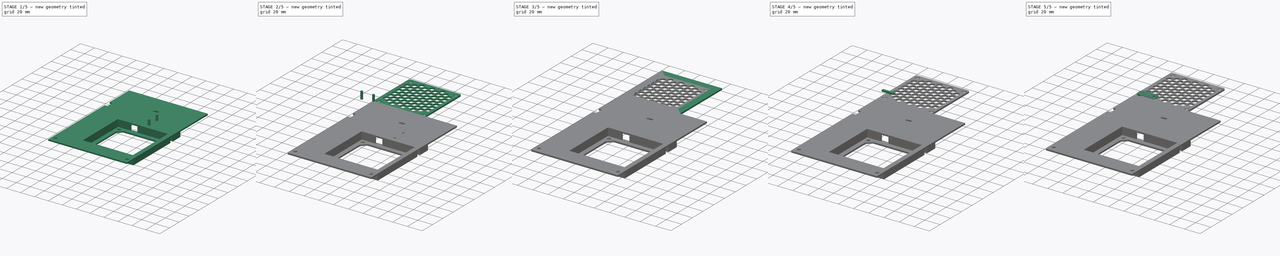
[diagram: build sequence overview — one tinted view per stage of 5, left to right]
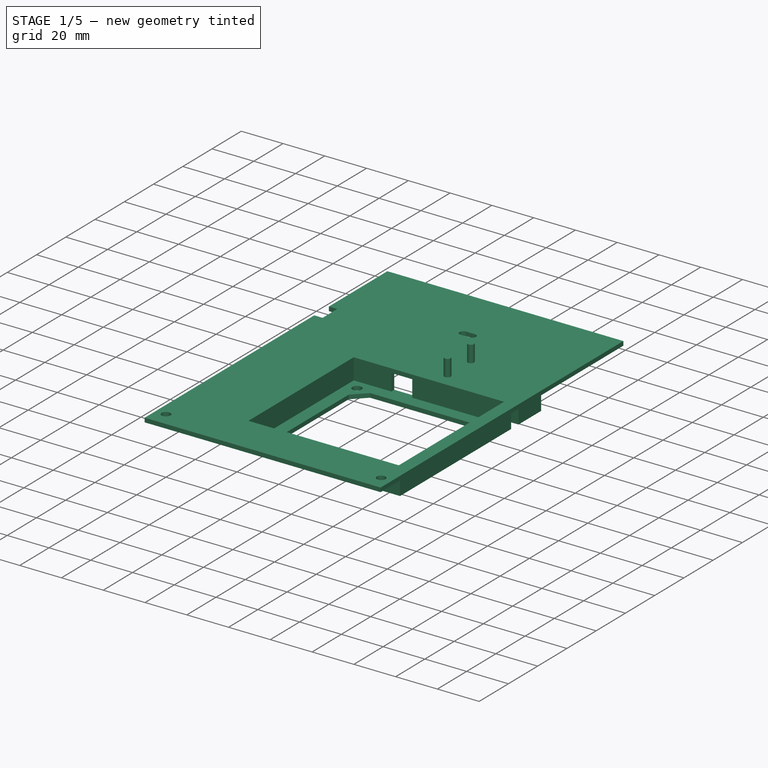
[diagram: stage 1 of 5 — iso view after this stage's code; geometry added in this stage tinted green]
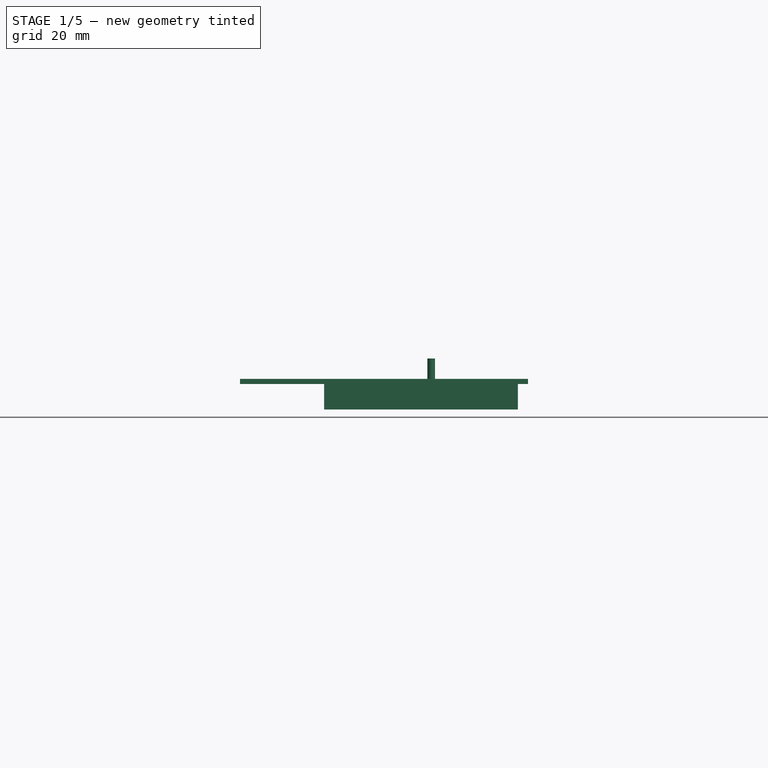
[diagram: stage 1 of 5 — front view after this stage's code; geometry added in this stage tinted green]
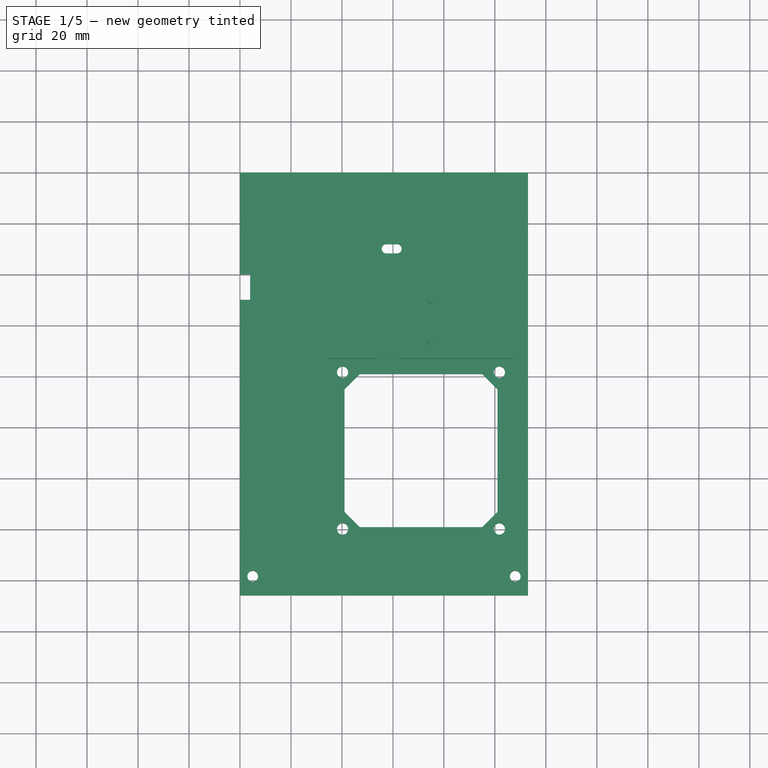
[diagram: stage 1 of 5 — top view after this stage's code; geometry added in this stage tinted green]
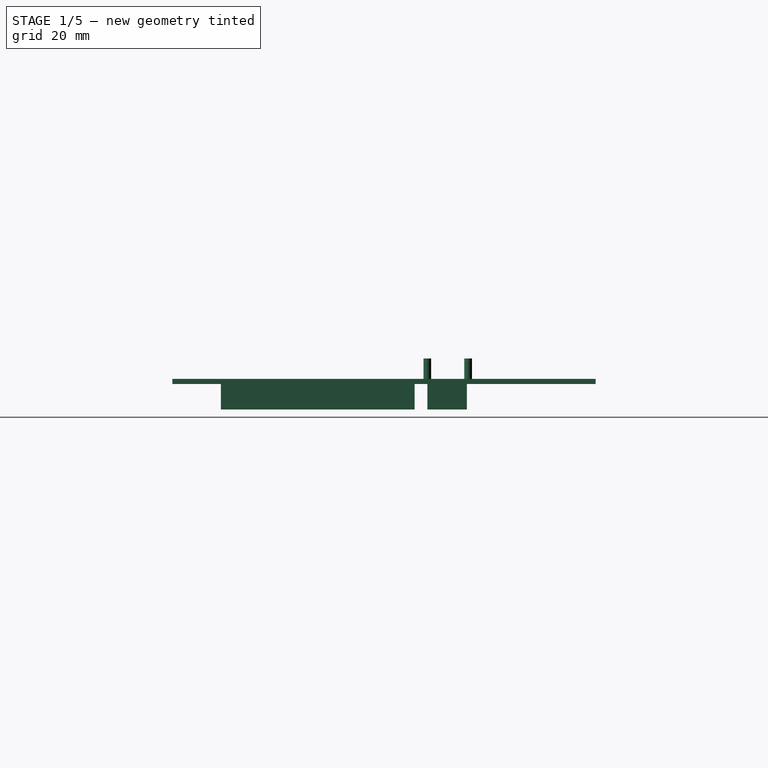
[diagram: stage 1 of 5 — right view after this stage's code; geometry added in this stage tinted green]
FCSTD DOCUMENT  (FreeCAD 0.18R14555 (Git shallow))
Label: toolbox-lit
License: All rights reserved
LicenseURL: http://en.wikipedia.org/wiki/All_rights_reserved
objects: Part::Feature×32, Part::Cylinder×27, Part::Box×16, Part::MultiFuse×16, Part::Cut×16, Part::Chamfer×4, Sketcher::SketchObject×1, PartDesign::Pad×1, PartDesign::Body×1, Part::MultiCommon×1, Part::Fillet×1
note: 117 computed .brp shape members not serialized (recipe doc carries the construction recipe); baked Part::Feature solids carry a one-line shape summary decoded from their .brp

FEATURE [Part::Feature] Fusion001002018001  label="Fusion001002019"
  shape: bbox 113 x 166 x 12 mm, 65 faces (baked)
FEATURE [Part::Cylinder] Cylinder017
  Angle = 360
  AttacherType = Attacher::AttachEngine3D
  Height = 2
  Placement = pos=(41,-79,-10) rot=(0,0,1;0rad)
  Radius = 2.2
FEATURE [Part::Cylinder] Cylinder018
  Angle = 360
  AttacherType = Attacher::AttachEngine3D
  Height = 2
  Placement = pos=(101,-79,-10) rot=(0,0,1;0rad)
  Radius = 2.2
FEATURE [Part::Cylinder] Cylinder019
  Angle = 360
  AttacherType = Attacher::AttachEngine3D
  Height = 2
  Placement = pos=(101,-139,-10) rot=(0,0,1;0rad)
  Radius = 2.2
FEATURE [Part::Cylinder] Cylinder020
  Angle = 360
  AttacherType = Attacher::AttachEngine3D
  Height = 2
  Placement = pos=(41,-139,-10) rot=(0,0,1;0rad)
  Radius = 2.2
FEATURE [Part::Cylinder] Cylinder021
  Angle = 360
  AttacherType = Attacher::AttachEngine3D
  Height = 2
  Placement = pos=(40.25,-139.75,-10) rot=(0,0,1;0rad)
  Radius = 2.2
FEATURE [Part::Cylinder] Cylinder022
  Angle = 360
  AttacherType = Attacher::AttachEngine3D
  Height = 2
  Placement = pos=(101.75,-139.75,-10) rot=(0,0,1;0rad)
  Radius = 2.2
FEATURE [Part::Cylinder] Cylinder023
  Angle = 360
  AttacherType = Attacher::AttachEngine3D
  Height = 2
  Placement = pos=(101.75,-78.25,-10) rot=(0,0,1;0rad)
  Radius = 2.2
FEATURE [Part::Cylinder] Cylinder024
  Angle = 360
  AttacherType = Attacher::AttachEngine3D
  Height = 2
  Placement = pos=(40.25,-78.25,-10) rot=(0,0,1;0rad)
  Radius = 2.2
FEATURE [Part::MultiFuse] Fusion001002018002
  Shapes = -> [Cylinder020,Cylinder019,Cylinder018,Cylinder017,Fusion001002018001]
FEATURE [Part::MultiFuse] Fusion001002018003
  Shapes = -> [Cylinder021,Cylinder024,Cylinder022,Cylinder023]
FEATURE [Part::Cut] Cut016
  Base = -> Fusion001002018002
  Tool = -> Fusion001002018003
FEATURE [Part::Cylinder] Cylinder029
  Angle = 360
  AttacherType = Attacher::AttachEngine3D
  Height = 10
  Placement = pos=(38,-66,0) rot=(0,0,1;0rad)
  Radius = 1.5
FEATURE [Part::Cylinder] Cylinder030
  Angle = 360
  AttacherType = Attacher::AttachEngine3D
  Height = 10
  Placement = pos=(38,-50,0) rot=(0,0,1;0rad)
  Radius = 1.5
FEATURE [Part::MultiFuse] Fusion001002018005009
  Placement = pos=(37,0,0) rot=(0,0,1;0rad)
  Shapes = -> [Cylinder030,Cylinder029]
FEATURE [Part::Box] Box018  label="Cube018"
  AttacherType = Attacher::AttachEngine3D
  Height = 2
  Length = 10
  Placement = pos=(32,-68,0) rot=(0,0,1;0rad)
  Width = 20
FEATURE [Part::Feature] Fusion001002018005010001  label="Fusion001002018005011"
  shape: bbox 113 x 166 x 12 mm, 65 faces (baked)
FEATURE [Part::Chamfer] Chamfer001004
  Base = -> Fusion001002018005010001
  Edges = 12 edges r=1: [Edge190,Edge191,Edge192,Edge194,Edge195,Edge196,Edge198,Edge199,Edge200,Edge202,Edge203,Edge204]
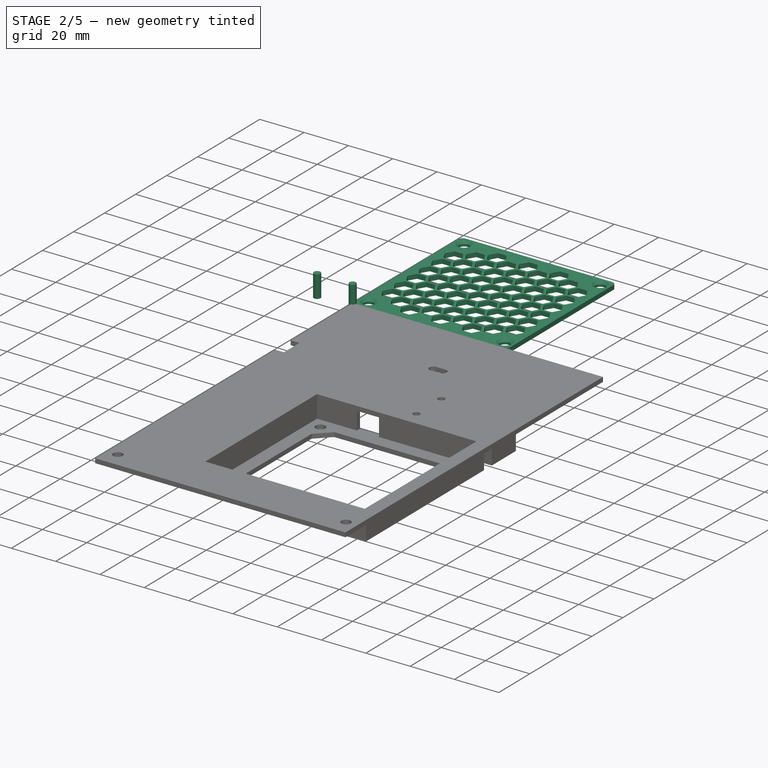
[diagram: stage 2 of 5 — iso view after this stage's code; geometry added in this stage tinted green]
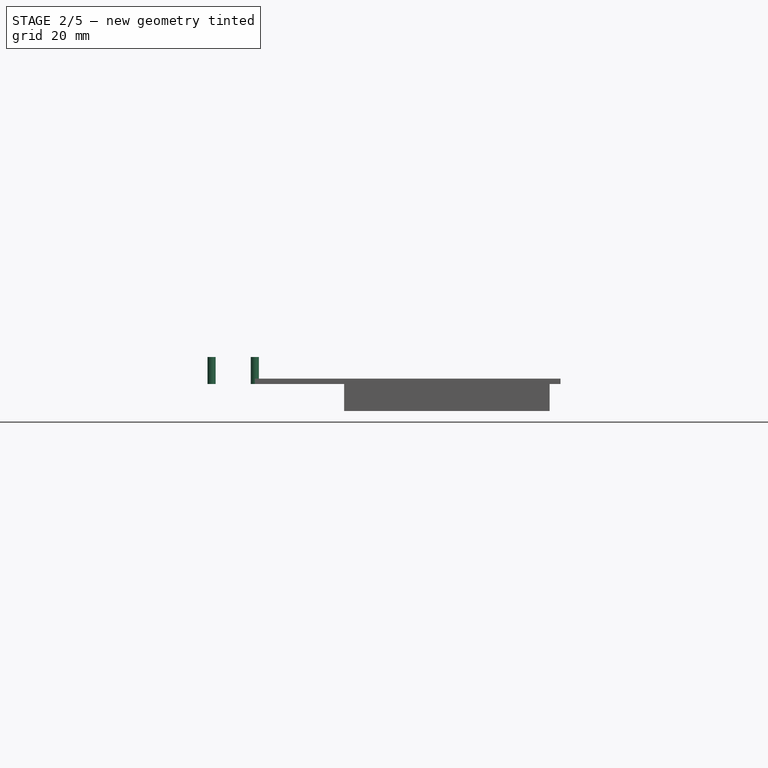
[diagram: stage 2 of 5 — front view after this stage's code; geometry added in this stage tinted green]
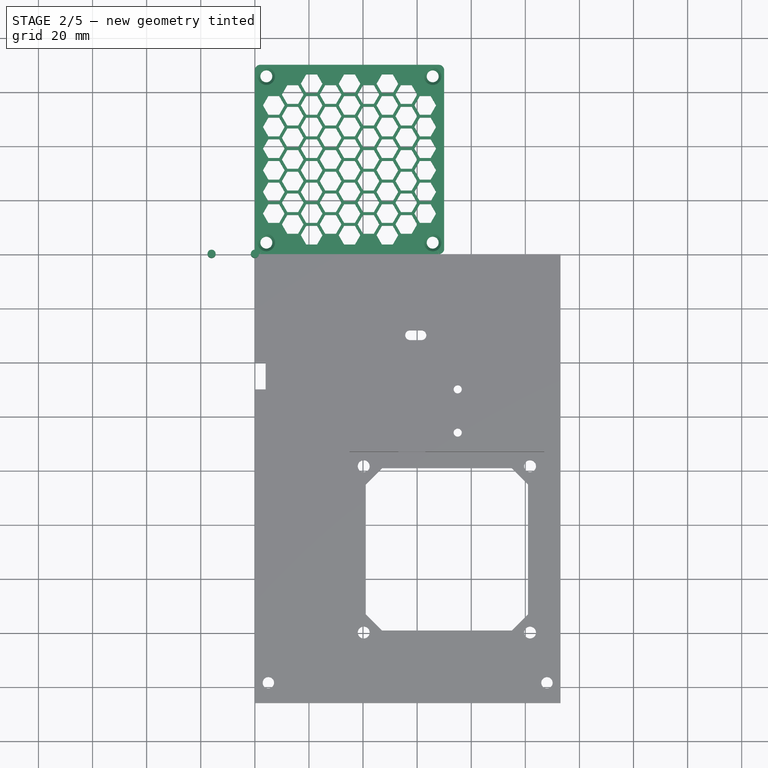
[diagram: stage 2 of 5 — top view after this stage's code; geometry added in this stage tinted green]
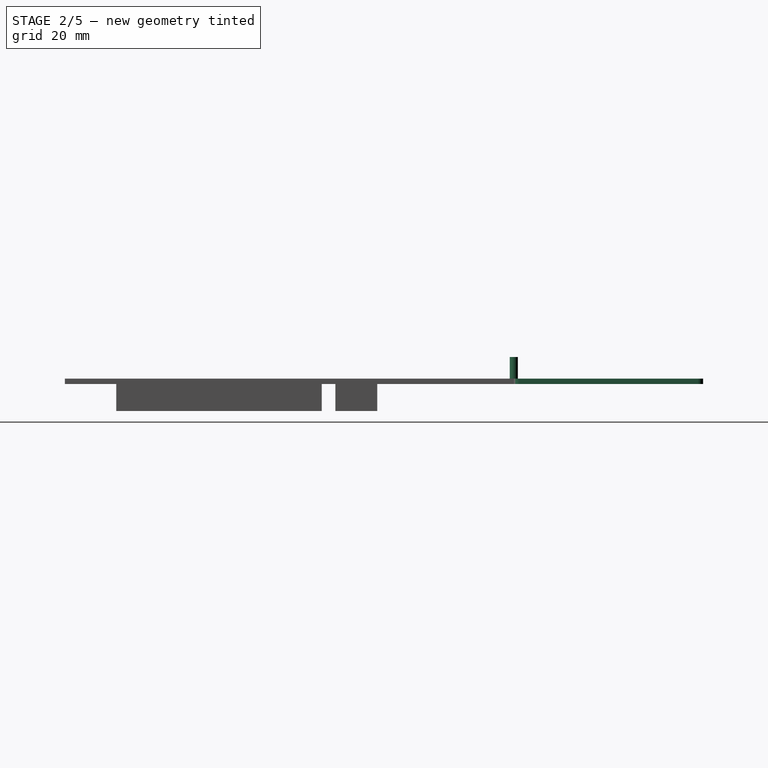
[diagram: stage 2 of 5 — right view after this stage's code; geometry added in this stage tinted green]
FEATURE [Part::Cylinder] Cylinder015
  Angle = 360
  AttacherType = Attacher::AttachEngine3D
  Height = 10
  Radius = 1.5
FEATURE [Part::Cylinder] Cylinder016
  Angle = 360
  AttacherType = Attacher::AttachEngine3D
  Height = 10
  Placement = pos=(-16,0,0) rot=(0,0,1;0rad)
  Radius = 1.5
FEATURE [Part::Box] Box  label="Cube"
  AttacherType = Attacher::AttachEngine3D
  Height = 2
  Length = 70
  Width = 70
FEATURE [Part::Cylinder] Cylinder025
  Angle = 360
  AttacherType = Attacher::AttachEngine3D
  Height = 2
  Placement = pos=(4.25,4.25,0) rot=(0,0,1;0rad)
  Radius = 2.2
FEATURE [Part::Cylinder] Cylinder026
  Angle = 360
  AttacherType = Attacher::AttachEngine3D
  Height = 2
  Placement = pos=(4.25,65.75,0) rot=(0,0,1;0rad)
  Radius = 2.2
FEATURE [Part::Cylinder] Cylinder027
  Angle = 360
  AttacherType = Attacher::AttachEngine3D
  Height = 2
  Placement = pos=(65.75,65.75,0) rot=(0,0,1;0rad)
  Radius = 2.2
FEATURE [Part::Cylinder] Cylinder028
  Angle = 360
  AttacherType = Attacher::AttachEngine3D
  Height = 2
  Placement = pos=(65.75,4.25,0) rot=(0,0,1;0rad)
  Radius = 2.2
FEATURE [Part::MultiFuse] Fusion001002018004
  Shapes = -> [Cylinder028,Cylinder027,Cylinder026,Cylinder025]
FEATURE [Part::Fillet] Fillet
  Base = -> Box
  Edges = 4 edges r=2: [Edge1,Edge3,Edge5,Edge7]
FEATURE [Part::Cut] Cut016002
  Base = -> Fillet
  Tool = -> Fusion001002018004
FEATURE [Part::Feature] Body022002  label="Body027"
  Placement = pos=(12,61,0) rot=(0,0,1;0rad)
  shape: bbox 8 x 6.928 x 2 mm, 8 faces (baked)
FEATURE [Part::Feature] Body022003  label="Body028"
  Placement = pos=(19,57,0) rot=(0,0,1;0rad)
  shape: bbox 8 x 6.928 x 2 mm, 8 faces (baked)
FEATURE [Part::Feature] Body022004  label="Body029"
  Placement = pos=(26,61,0) rot=(0,0,1;0rad)
  shape: bbox 8 x 6.928 x 2 mm, 8 faces (baked)
FEATURE [Part::Feature] Body022005  label="Body030"
  Placement = pos=(33,57,0) rot=(0,0,1;0rad)
  shape: bbox 8 x 6.928 x 2 mm, 8 faces (baked)
FEATURE [Part::Feature] Body022006  label="Body031"
  Placement = pos=(40,61,0) rot=(0,0,1;0rad)
  shape: bbox 8 x 6.928 x 2 mm, 8 faces (baked)
FEATURE [Part::Feature] Body022007  label="Body032"
  Placement = pos=(47,57,0) rot=(0,0,1;0rad)
  shape: bbox 8 x 6.928 x 2 mm, 8 faces (baked)
FEATURE [Part::Feature] Body022008  label="Body033"
  Placement = pos=(54,61,0) rot=(0,0,1;0rad)
  shape: bbox 8 x 6.928 x 2 mm, 8 faces (baked)
FEATURE [Part::Feature] Body022009  label="Body034"
  Placement = pos=(61,57,0) rot=(0,0,1;0rad)
  shape: bbox 8 x 6.928 x 2 mm, 8 faces (baked)
FEATURE [Part::Feature] Body022010  label="Body035"
  Placement = pos=(5,57,0) rot=(0,0,1;0rad)
  shape: bbox 8 x 6.928 x 2 mm, 8 faces (baked)
FEATURE [Part::Feature] Body022013  label="Body038"
  Placement = pos=(14,13,0) rot=(0,0,1;0rad)
  shape: bbox 8 x 6.928 x 2 mm, 8 faces (baked)
FEATURE [Part::MultiFuse] Fusion001002018005
  Placement = pos=(2,0,0) rot=(0,0,1;0rad)
  Shapes = -> [Body022010,Body022009,Body022002,Body022008,Body022005,Body022004,Body022003,Body022006,Body022007]
FEATURE [Part::Feature] Fusion001002018005001  label="Fusion001002018006"
  Placement = pos=(2,0,0) rot=(0,0,1;0rad)
  shape: bbox 64 x 10.93 x 2 mm, 72 faces, 9 solids (baked)
FEATURE [Part::Feature] Fusion001002018005002  label="Fusion001002018007"
  Placement = pos=(2,-8,0) rot=(0,0,1;0rad)
  shape: bbox 64 x 10.93 x 2 mm, 72 faces, 9 solids (baked)
FEATURE [Part::Feature] Fusion001002018005003  label="Fusion001002018008"
  Placement = pos=(2,-16,0) rot=(0,0,1;0rad)
  shape: bbox 64 x 10.93 x 2 mm, 72 faces, 9 solids (baked)
FEATURE [Part::Feature] Fusion001002018005004  label="Fusion001002018009"
  Placement = pos=(2,-24,0) rot=(0,0,1;0rad)
  shape: bbox 64 x 10.93 x 2 mm, 72 faces, 9 solids (baked)
FEATURE [Part::Feature] Fusion001002018005005  label="Fusion001002018010"
  Placement = pos=(2,-32,0) rot=(0,0,1;0rad)
  shape: bbox 64 x 10.93 x 2 mm, 72 faces, 9 solids (baked)
FEATURE [Part::Feature] Fusion001002018005006  label="Fusion001002018011"
  Placement = pos=(2,-40,0) rot=(0,0,1;0rad)
  shape: bbox 64 x 10.93 x 2 mm, 72 faces, 9 solids (baked)
FEATURE [Part::Feature] Body022014  label="Body039"
  Placement = pos=(28,13,0) rot=(0,0,1;0rad)
  shape: bbox 8 x 6.928 x 2 mm, 8 faces (baked)
FEATURE [Part::Feature] Body022015  label="Body040"
  Placement = pos=(42,13,0) rot=(0,0,1;0rad)
  shape: bbox 8 x 6.928 x 2 mm, 8 faces (baked)
FEATURE [Part::Feature] Body022016  label="Body041"
  Placement = pos=(56,13,0) rot=(0,0,1;0rad)
  shape: bbox 8 x 6.928 x 2 mm, 8 faces (baked)
FEATURE [Part::MultiFuse] Fusion001002018005007
  Placement = pos=(0,-3,0) rot=(0,0,1;0rad)
  Shapes = -> [Body022013,Fusion001002018005001,Fusion001002018005004,Fusion001002018005002,Fusion001002018005003,Fusion001002018005,Body022014,Fusion001002018005005,Body022015,Body022016,Fusion001002018005006]
FEATURE [Part::Feature] Body022017  label="Body042"
  Placement = pos=(21,6,0) rot=(0,0,1;0rad)
  shape: bbox 8 x 6.928 x 2 mm, 8 faces (baked)
FEATURE [Part::Feature] Body022018  label="Body043"
  Placement = pos=(35,6,0) rot=(0,0,1;0rad)
  shape: bbox 8 x 6.928 x 2 mm, 8 faces (baked)
FEATURE [Part::Feature] Body022019  label="Body044"
  Placement = pos=(49,6,0) rot=(0,0,1;0rad)
  shape: bbox 8 x 6.928 x 2 mm, 8 faces (baked)
FEATURE [Part::Feature] Body022020  label="Body045"
  Placement = pos=(49,62,0) rot=(0,0,1;0rad)
  shape: bbox 8 x 6.928 x 2 mm, 8 faces (baked)
FEATURE [Part::Feature] Body022021  label="Body046"
  Placement = pos=(35,62,0) rot=(0,0,1;0rad)
  shape: bbox 8 x 6.928 x 2 mm, 8 faces (baked)
FEATURE [Part::Feature] Body022022  label="Body047"
  Placement = pos=(21,62,0) rot=(0,0,1;0rad)
  shape: bbox 8 x 6.928 x 2 mm, 8 faces (baked)
FEATURE [Part::MultiFuse] Fusion001002018005008
  Placement = pos=(0,1,0) rot=(0,0,1;0rad)
  Shapes = -> [Body022022,Body022020,Body022019,Body022021,Body022017,Body022018,Fusion001002018005007]
FEATURE [Part::Cut] Cut016003
  Base = -> Cut016002
  Tool = -> Fusion001002018005008
FEATURE [Part::Chamfer] Chamfer001003  label="mesh"
  Base = -> Cut016003
  Edges = 4 edges r=1: [Edge168,Edge253,Edge398,Edge399]
FEATURE [Part::Cut] Cut016004
  Base = -> Cut016
  Tool = -> Fusion001002018005009
FEATURE [Part::MultiFuse] Fusion001002018005010
  Shapes = -> [Box018,Cut016004]
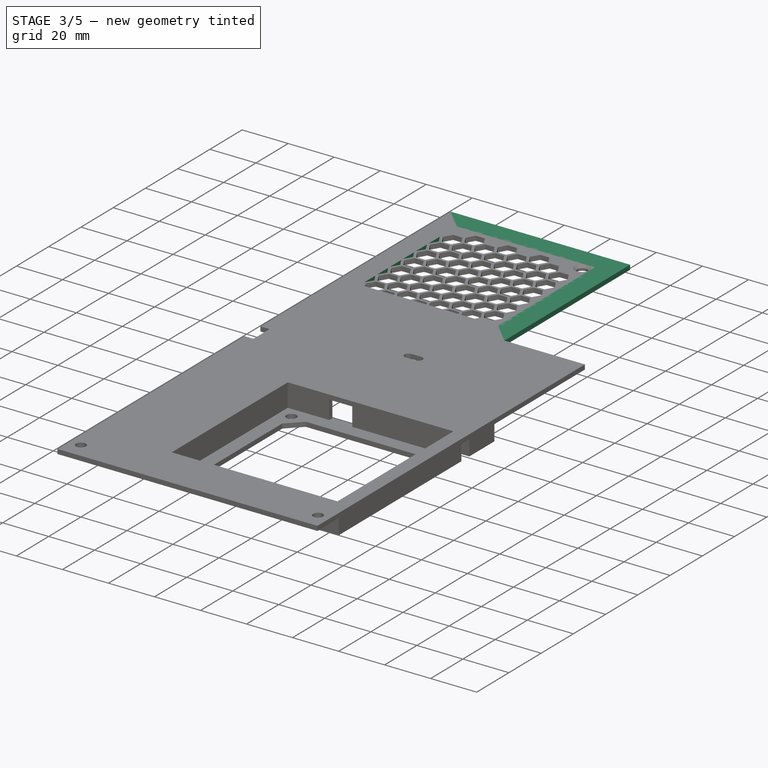
[diagram: stage 3 of 5 — iso view after this stage's code; geometry added in this stage tinted green]
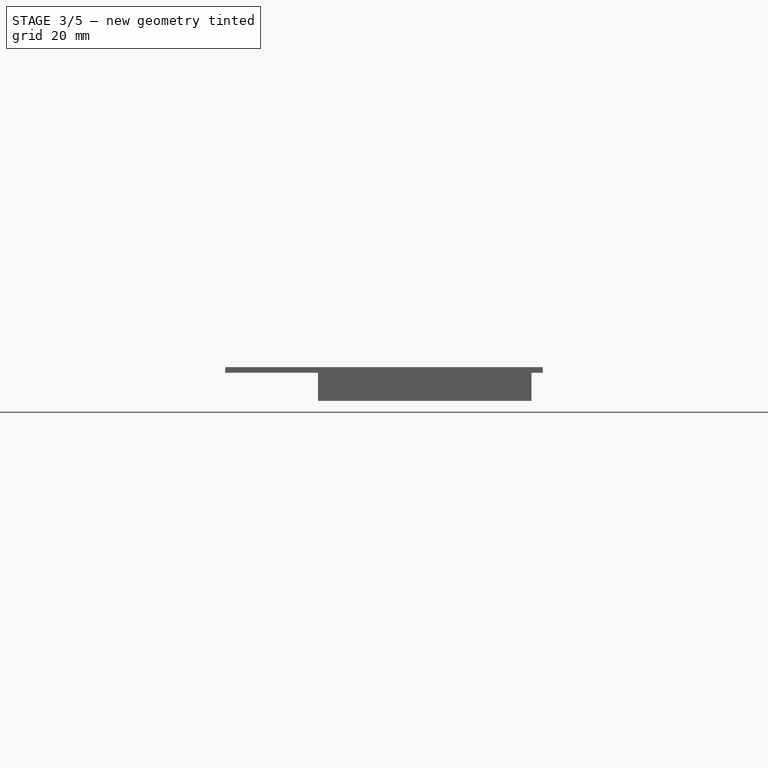
[diagram: stage 3 of 5 — front view after this stage's code; geometry added in this stage tinted green]
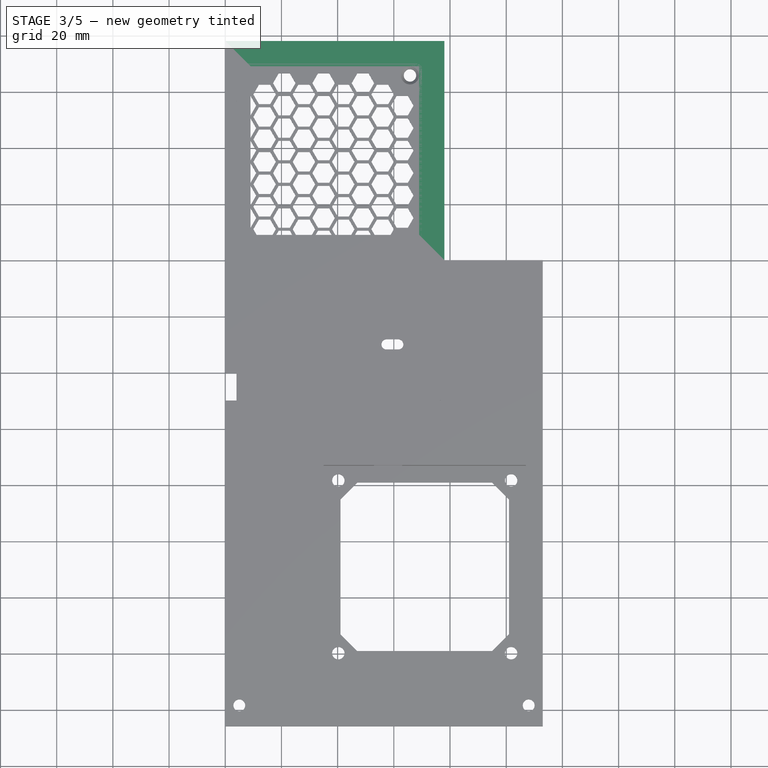
[diagram: stage 3 of 5 — top view after this stage's code; geometry added in this stage tinted green]
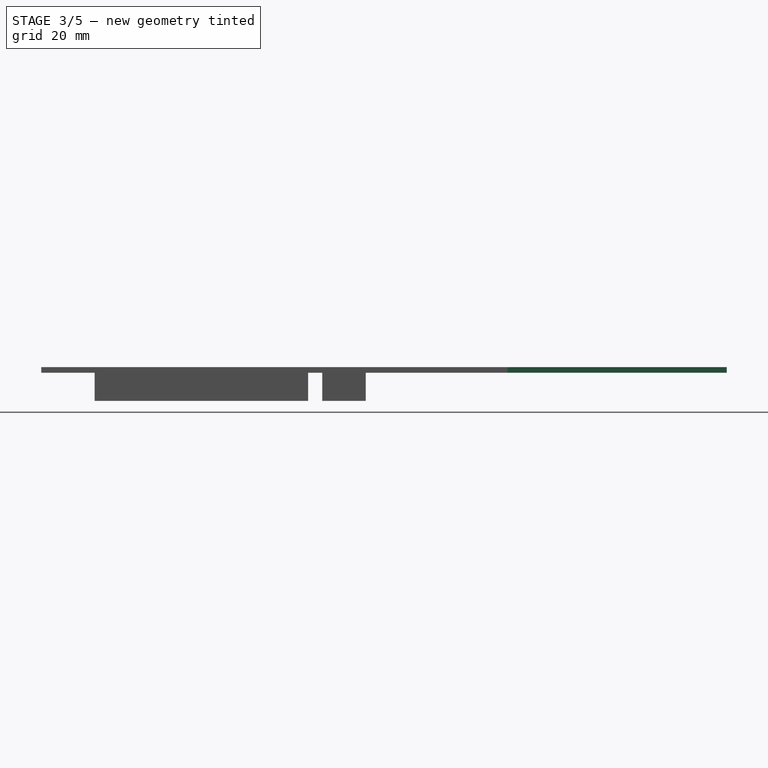
[diagram: stage 3 of 5 — right view after this stage's code; geometry added in this stage tinted green]
FEATURE [Sketcher::SketchObject] Sketch001
  MapMode = 5
  Support = -> [XY_Plane001]
  sketch-geometry (8):
    g0: LineSegment StartX=0 StartY=0 StartZ=0 EndX=113 EndY=0 EndZ=0
    g1: LineSegment StartX=113 StartY=0 StartZ=0 EndX=113 EndY=-166 EndZ=0
    g2: LineSegment StartX=113 StartY=-166 StartZ=0 EndX=0 EndY=-166 EndZ=0
    g3: LineSegment StartX=0 StartY=-166 StartZ=0 EndX=0 EndY=-50 EndZ=0
    g4: LineSegment StartX=0 StartY=-50 StartZ=0 EndX=4 EndY=-50 EndZ=0
    g5: LineSegment StartX=4 StartY=-50 StartZ=0 EndX=4 EndY=-40 EndZ=0
    g6: LineSegment StartX=4 StartY=-40 StartZ=0 EndX=0 EndY=-40 EndZ=0
    g7: LineSegment StartX=0 StartY=-40 StartZ=0 EndX=0 EndY=0 EndZ=0
  constraints (18):
    c: Coincident(g-1,g0)
    c: PointOnObject(g0,g-1)
    c: Coincident(g0,g1)
    c: Vertical(g1)
    c: Coincident(g1,g2)
    c: Horizontal(g2)
    c: Coincident(g2,g3)
    c: PointOnObject(g3,g-2)
    c: Vertical(g3)
    c: Coincident(g3,g4)
    c: Horizontal(g4)
    c: Coincident(g4,g5)
    c: Vertical(g5)
    c: Coincident(g5,g6)
    c: PointOnObject(g6,g-2)
    c: Horizontal(g6)
    c: Coincident(g6,g7)
    c: Coincident(g7,g0)
FEATURE [PartDesign::Pad] Pad001
  Length = 2
  Length2 = 100
  Profile = -> Sketch001
  Type = 0
FEATURE [PartDesign::Body] Body019
  Group = -> [Sketch001,Pad001]
  Origin = -> Origin001
  Tip = -> Pad001
FEATURE [Part::Cylinder] Cylinder005
  Angle = 360
  AttacherType = Attacher::AttachEngine3D
  Height = 10
  Placement = pos=(5,-158.5,0) rot=(0,0,1;0rad)
  Radius = 2.1
FEATURE [Part::Cylinder] Cylinder006
  Angle = 360
  AttacherType = Attacher::AttachEngine3D
  Height = 10
  Placement = pos=(108,-158.5,0) rot=(0,0,1;0rad)
  Radius = 2.1
FEATURE [Part::Cylinder] Cylinder007
  Angle = 360
  AttacherType = Attacher::AttachEngine3D
  Height = 10
  Placement = pos=(59.5,-30,0) rot=(0,0,1;0rad)
  Radius = 1.8
FEATURE [Part::Cylinder] Cylinder008
  Angle = 360
  AttacherType = Attacher::AttachEngine3D
  Height = 10
  Placement = pos=(57.4,-30,0) rot=(0,0,1;0rad)
  Radius = 1.8
FEATURE [Part::Cylinder] Cylinder009
  Angle = 360
  AttacherType = Attacher::AttachEngine3D
  Height = 10
  Placement = pos=(61.6,-30,0) rot=(0,0,1;0rad)
  Radius = 1.8
FEATURE [Part::Box] Box002  label="Cube002"
  AttacherType = Attacher::AttachEngine3D
  Height = 10
  Length = 4.2
  Placement = pos=(57.4,-31.8,0) rot=(0,0,1;0rad)
  Width = 3.6
FEATURE [Part::MultiFuse] Fusion001002008
  Shapes = -> [Box002,Cylinder008,Cylinder009,Cylinder007,Cylinder006,Cylinder005]
FEATURE [Part::Cut] Cut003  label="lit"
  Base = -> Body019
  Tool = -> Fusion001002008
FEATURE [Part::Box] Box003  label="Cube003"
  AttacherType = Attacher::AttachEngine3D
  Height = 2
  Length = 78
  Width = 78
FEATURE [Part::Box] Box009  label="Cube009"
  AttacherType = Attacher::AttachEngine3D
  Height = 10
  Length = 72
  Placement = pos=(35,-145,-3) rot=(0,0,1;0rad)
  Width = 72
FEATURE [Part::Cut] Cut006
  Base = -> Cut003
  Tool = -> Box009
FEATURE [Part::MultiFuse] Fusion001002014
  Placement = pos=(38,-66,0) rot=(0,0,-1;1.5708rad)
  Shapes = -> [Cylinder016,Cylinder015]
FEATURE [Part::Feature] Chamfer001001  label="cable-holder"
  Placement = pos=(-27,-46,0) rot=(0,0,-1;1.5708rad)
  shape: bbox 10 x 24 x 3 mm, 16 faces (baked)
FEATURE [Part::Box] Box017  label="Cube017"
  AttacherType = Attacher::AttachEngine3D
  Height = 10
  Length = 60
  Placement = pos=(9,9,0) rot=(0,0,1;0rad)
  Width = 60
FEATURE [Part::Cut] Cut
  Base = -> Box003
  Tool = -> Box017
FEATURE [Part::Cut] Cut015
  Base = -> Cut006
  Tool = -> Fusion001002014
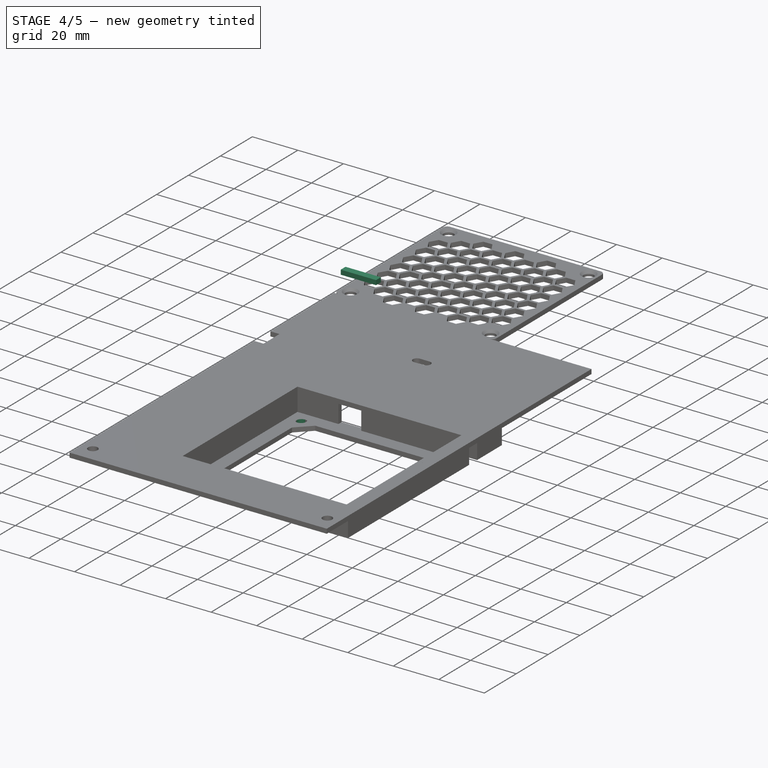
[diagram: stage 4 of 5 — iso view after this stage's code; geometry added in this stage tinted green]
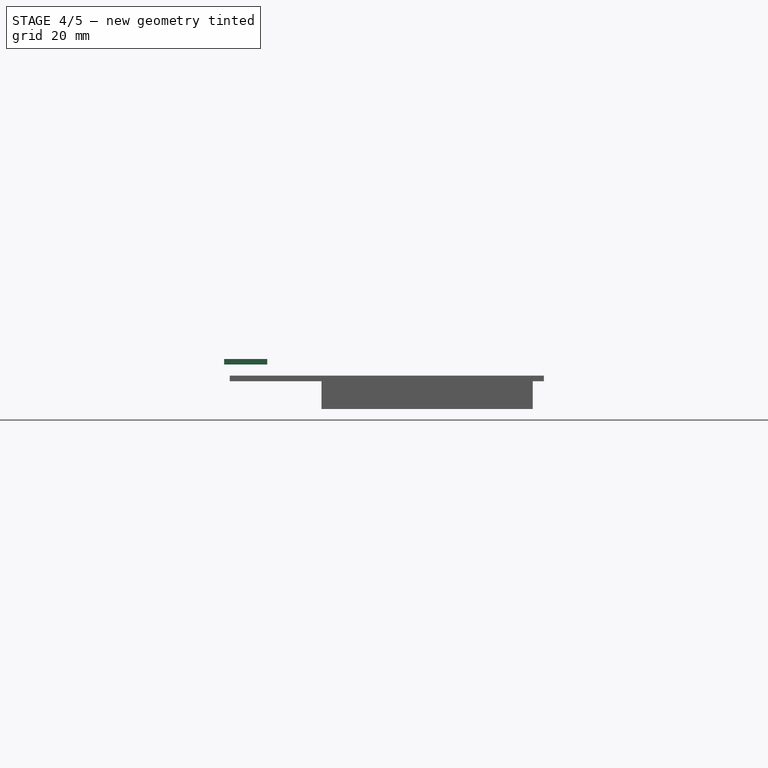
[diagram: stage 4 of 5 — front view after this stage's code; geometry added in this stage tinted green]
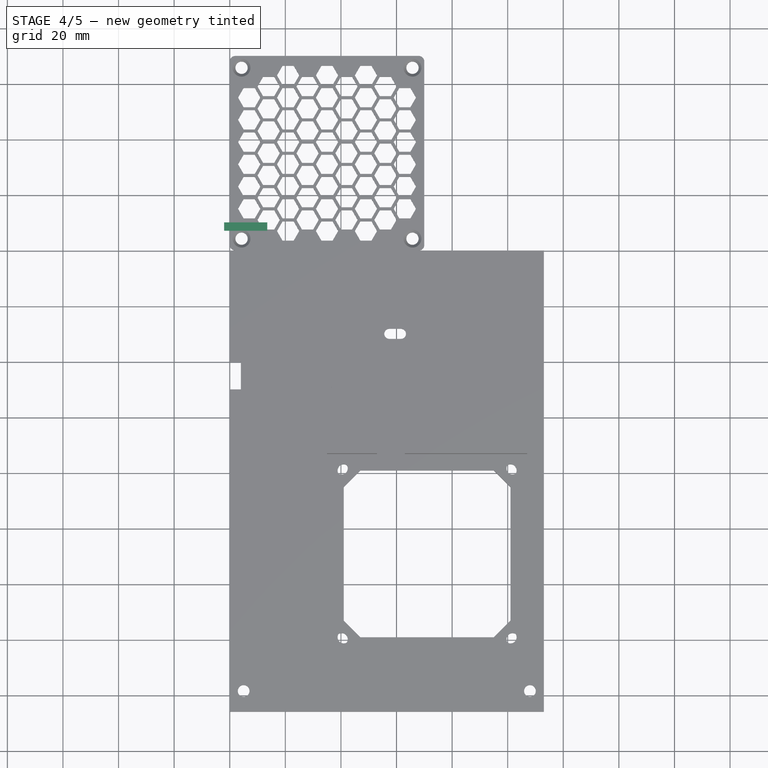
[diagram: stage 4 of 5 — top view after this stage's code; geometry added in this stage tinted green]
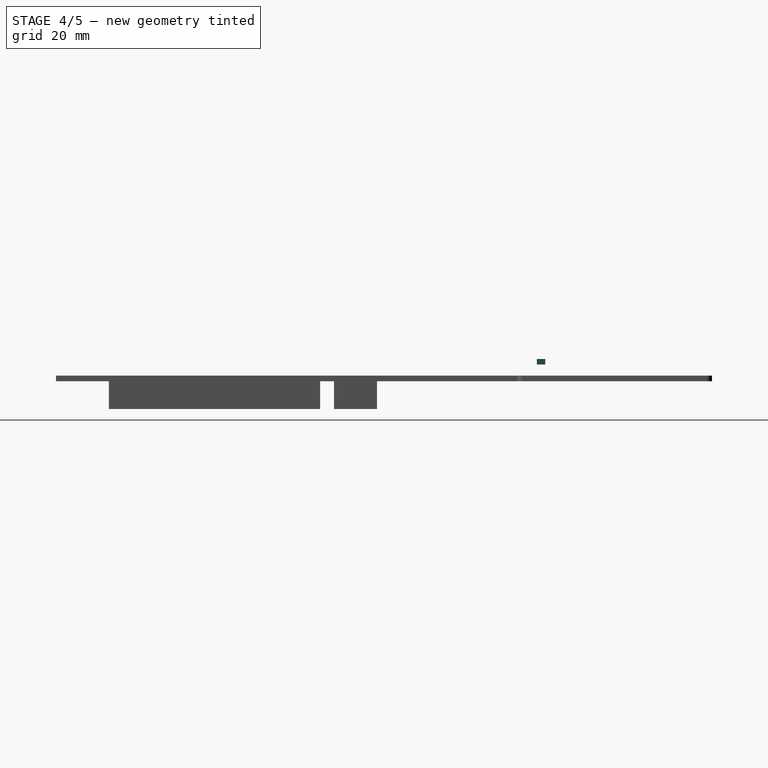
[diagram: stage 4 of 5 — right view after this stage's code; geometry added in this stage tinted green]
FEATURE [Part::Cylinder] Cylinder
  Angle = 360
  AttacherType = Attacher::AttachEngine3D
  Height = 10
  Placement = pos=(9,9,0) rot=(0,0,1;0rad)
  Radius = 2.2
FEATURE [Part::Cylinder] Cylinder010
  Angle = 360
  AttacherType = Attacher::AttachEngine3D
  Height = 10
  Placement = pos=(9,69,0) rot=(0,0,1;0rad)
  Radius = 2.2
FEATURE [Part::Cylinder] Cylinder011
  Angle = 360
  AttacherType = Attacher::AttachEngine3D
  Height = 10
  Placement = pos=(69,9,0) rot=(0,0,1;0rad)
  Radius = 2.2
FEATURE [Part::Cylinder] Cylinder012
  Angle = 360
  AttacherType = Attacher::AttachEngine3D
  Height = 10
  Placement = pos=(69,69,0) rot=(0,0,1;0rad)
  Radius = 2.2
FEATURE [Part::Feature] Body023
  shape: bbox 24 x 24 x 2 mm, 5 faces (baked)
FEATURE [Part::Feature] Body020001  label="Body024"
  Placement = pos=(-42,0,0) rot=(0,0,1;0rad)
  shape: bbox 24 x 24 x 2 mm, 5 faces (baked)
FEATURE [Part::Feature] Body022001  label="Body025"
  Placement = pos=(-18,-42,0) rot=(0,0,1;0rad)
  shape: bbox 24 x 24 x 2 mm, 5 faces (baked)
FEATURE [Part::Feature] Body021001  label="Body026"
  Placement = pos=(24,-18,0) rot=(0,0,1;0rad)
  shape: bbox 24 x 24 x 2 mm, 5 faces (baked)
FEATURE [Part::Box] Box006  label="Cube006"
  AttacherType = Attacher::AttachEngine3D
  Height = 10
  Length = 76
  Placement = pos=(1,1,0) rot=(0,0,1;0rad)
  Width = 76
FEATURE [Part::Box] Box007  label="Cube007"
  AttacherType = Attacher::AttachEngine3D
  Height = 10
  Length = 76
  Placement = pos=(1,1,2) rot=(0,0,1;0rad)
  Width = 76
FEATURE [Part::Box] Box008  label="Cube008"
  AttacherType = Attacher::AttachEngine3D
  Height = 10
  Length = 72
  Placement = pos=(3,3,2) rot=(0,0,1;0rad)
  Width = 72
FEATURE [Part::Cut] Cut005
  Base = -> Box007
  Tool = -> Box008
FEATURE [Part::Box] Box013  label="Cube013"
  AttacherType = Attacher::AttachEngine3D
  Height = 2
  Length = 15.5
  Placement = pos=(-2,7,6) rot=(0,0,1;0rad)
  Width = 3
FEATURE [Part::Box] Box014  label="Cube014"
  AttacherType = Attacher::AttachEngine3D
  Height = 8
  Length = 10
  Placement = pos=(53,-81,-8) rot=(0,0,1;0rad)
  Width = 10
FEATURE [Part::MultiFuse] Fusion001002015
  Shapes = -> [Body020001,Body023,Body022001,Body021001]
FEATURE [Part::MultiFuse] Fusion
  Shapes = -> [Cylinder,Cylinder011,Cylinder012,Cylinder010]
FEATURE [Part::MultiFuse] Fusion001002016
  Shapes = -> [Fusion001002015,Cut]
FEATURE [Part::Cut] Cut013
  Base = -> Fusion001002016
  Tool = -> Fusion
FEATURE [Part::MultiCommon] Common
  Shapes = -> [Box006,Cut013]
FEATURE [Part::MultiFuse] Fusion001002017
  Placement = pos=(32,-148,-10) rot=(0,0,1;0rad)
  Shapes = -> [Common,Cut005]
FEATURE [Part::Cut] Cut014
  Base = -> Fusion001002017
  Tool = -> Box014
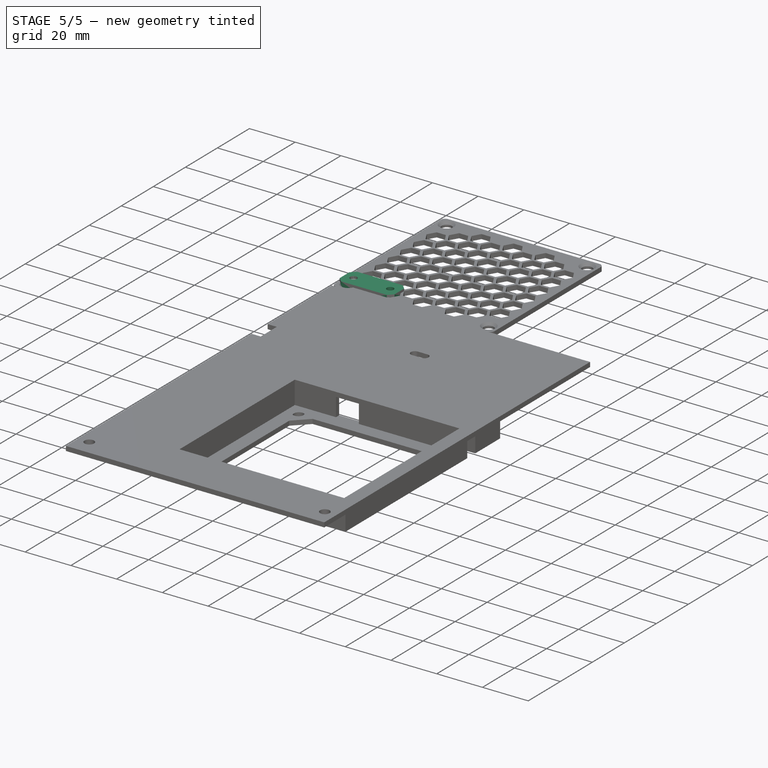
[diagram: stage 5 of 5 — iso view after this stage's code; geometry added in this stage tinted green]
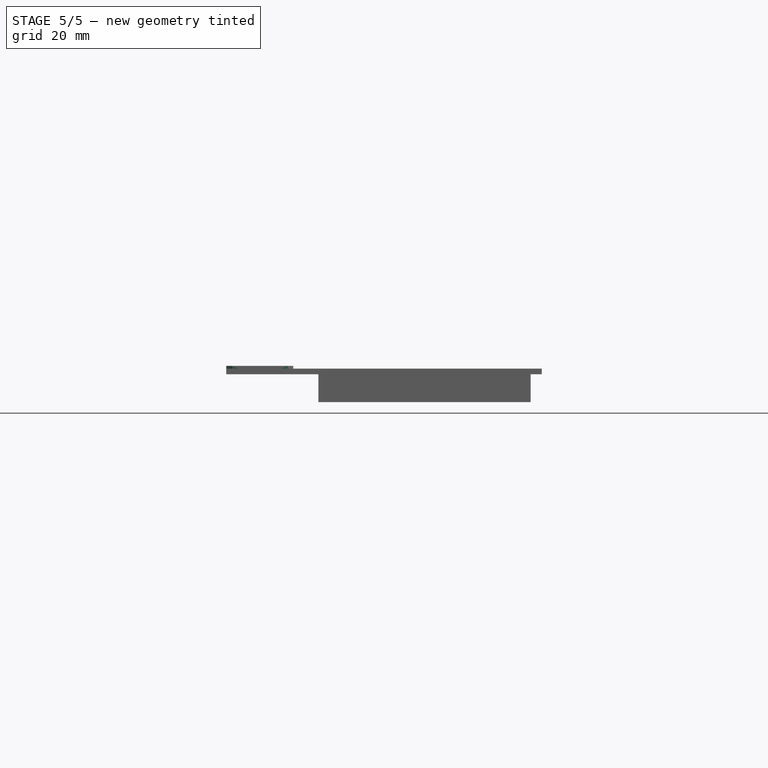
[diagram: stage 5 of 5 — front view after this stage's code; geometry added in this stage tinted green]
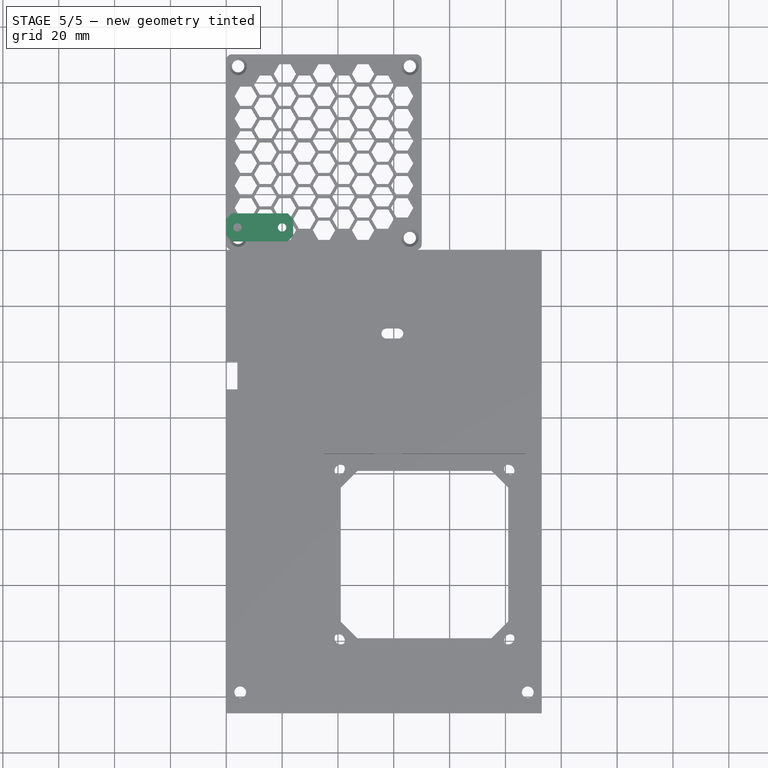
[diagram: stage 5 of 5 — top view after this stage's code; geometry added in this stage tinted green]
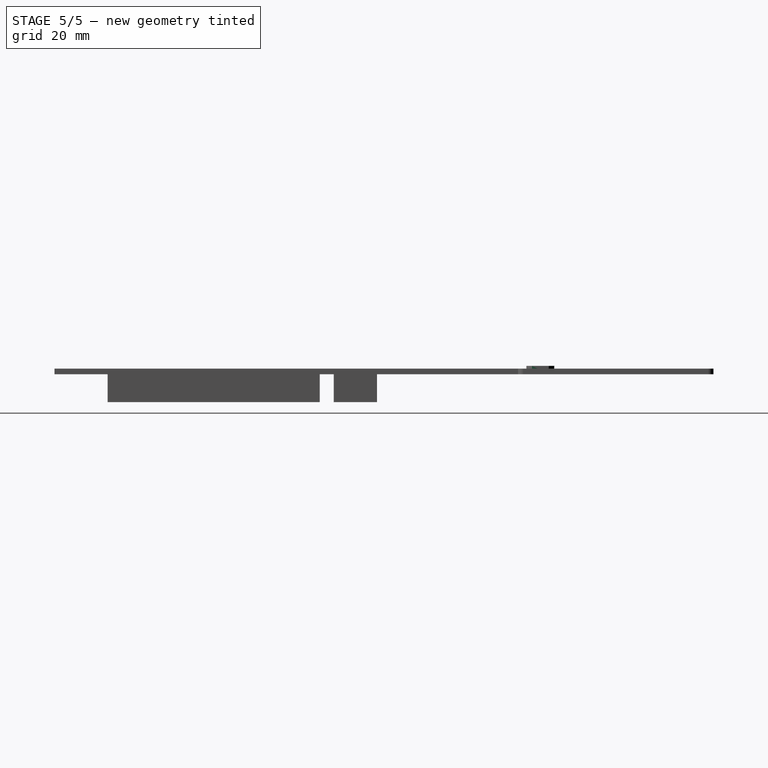
[diagram: stage 5 of 5 — right view after this stage's code; geometry added in this stage tinted green]
FEATURE [Part::Box] Box010  label="Cube010"
  AttacherType = Attacher::AttachEngine3D
  Height = 10
  Length = 11.5
  Width = 21
FEATURE [Part::Box] Box011  label="Cube011"
  AttacherType = Attacher::AttachEngine3D
  Height = 10
  Length = 15.5
  Placement = pos=(-2,-2,0) rot=(0,0,1;0rad)
  Width = 25
FEATURE [Part::Cut] Cut007
  Base = -> Box011
  Tool = -> Box010
FEATURE [Part::Box] Box012  label="Cube012"
  AttacherType = Attacher::AttachEngine3D
  Height = 10
  Length = 9.5
  Placement = pos=(1,-2,0) rot=(0,0,1;0rad)
  Width = 2
FEATURE [Part::Cut] Cut008
  Base = -> Cut007
  Tool = -> Box012
FEATURE [Part::Cut] Cut009
  Base = -> Cut008
  Placement = pos=(86,-64,-5e-15) rot=(0.707107,0.707107,0;3.14159rad)
  Tool = -> Box013
FEATURE [Part::Chamfer] Chamfer
  Base = -> Cut009
  Edges = 2 edges r=1: [Edge8,Edge46]
FEATURE [Part::Box] Box015  label="Cube015"
  AttacherType = Attacher::AttachEngine3D
  Height = 3
  Length = 24
  Width = 10
FEATURE [Part::Box] Box016  label="Cube016"
  AttacherType = Attacher::AttachEngine3D
  Height = 1
  Length = 10
  Placement = pos=(7,0,0) rot=(0,0,1;0rad)
  Width = 10
FEATURE [Part::Cylinder] Cylinder013
  Angle = 360
  AttacherType = Attacher::AttachEngine3D
  Height = 3
  Placement = pos=(4,5,0) rot=(0,0,1;0rad)
  Radius = 1.5
FEATURE [Part::Cylinder] Cylinder014
  Angle = 360
  AttacherType = Attacher::AttachEngine3D
  Height = 3
  Placement = pos=(20,5,0) rot=(0,0,1;0rad)
  Radius = 1.5
FEATURE [Part::Cut] Cut011
  Base = -> Box015
  Tool = -> Box016
FEATURE [Part::MultiFuse] Fusion001002013
  Shapes = -> [Cylinder014,Cylinder013]
FEATURE [Part::Cut] Cut012
  Base = -> Cut011
  Placement = pos=(0,3,0) rot=(0,0,1;0rad)
  Tool = -> Fusion001002013
FEATURE [Part::Chamfer] Chamfer001
  Base = -> Cut012
  Edges = 4 edges r=2: [Edge1,Edge3,Edge10,Edge21]
FEATURE [Part::MultiFuse] Fusion001002018
  Shapes = -> [Cut015,Chamfer,Cut014]
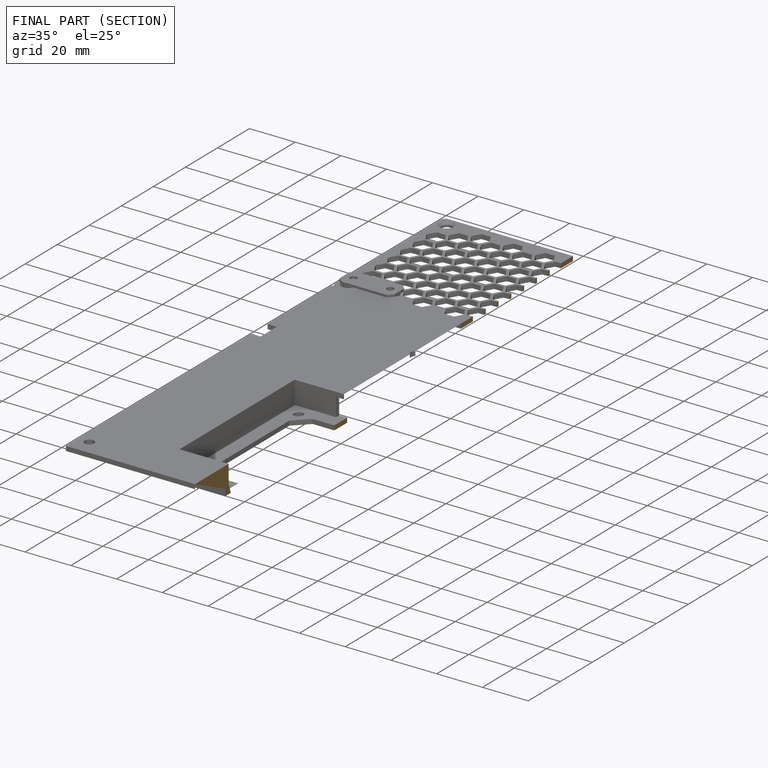
[diagram: finished part — half-section view (interior)]
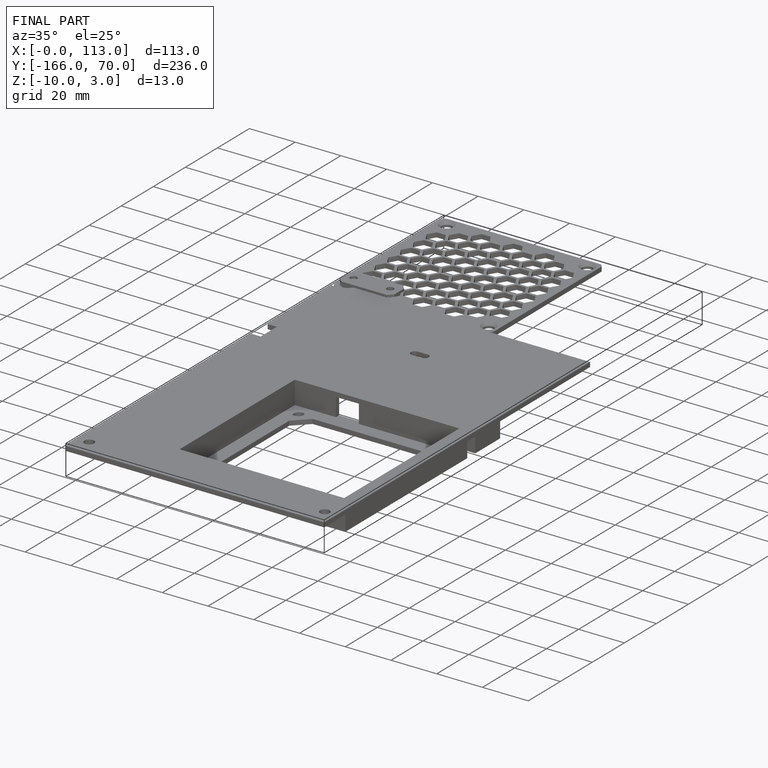
[diagram: finished part — iso view with bounding-box wireframe]
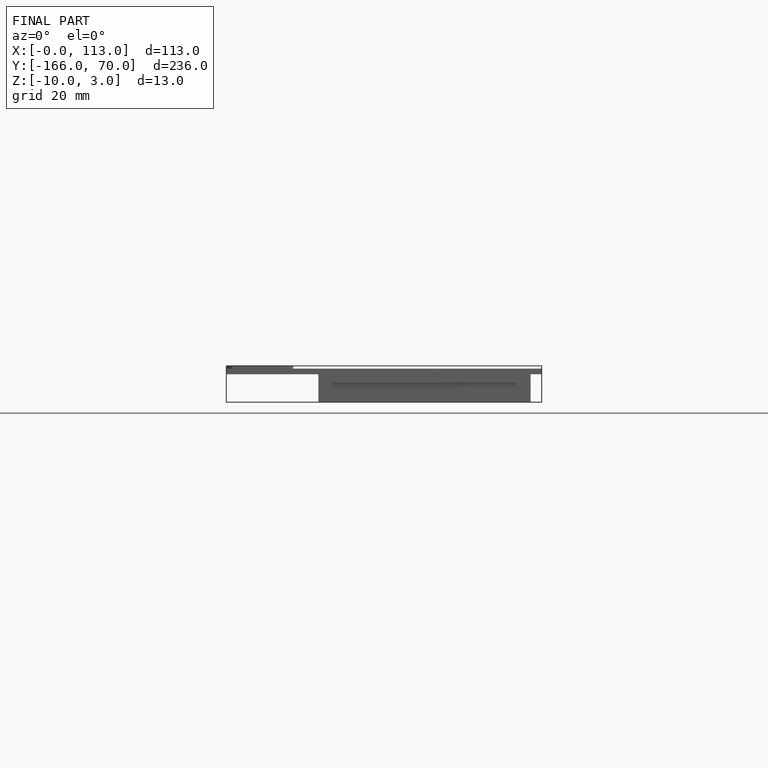
[diagram: finished part — front view with bounding-box wireframe]
